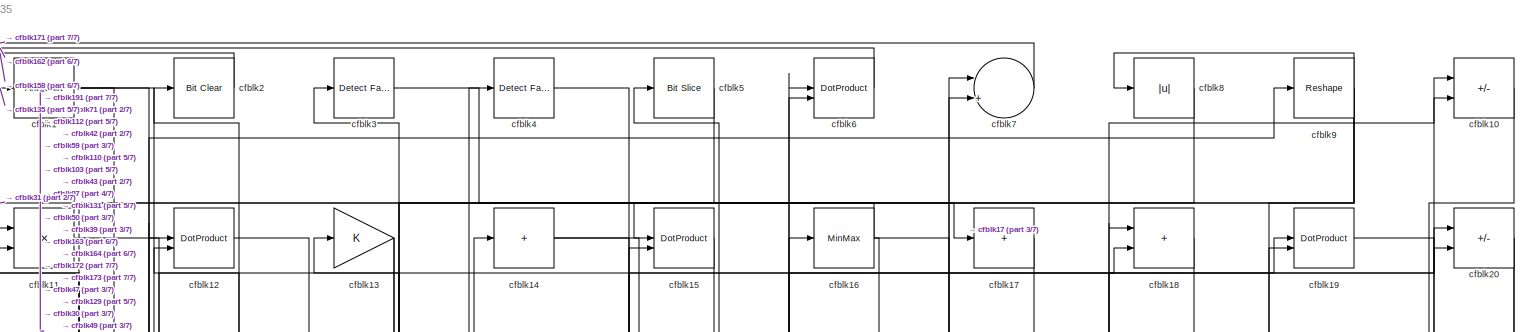
[diagram: root canvas - part 1/7, full width, top band]
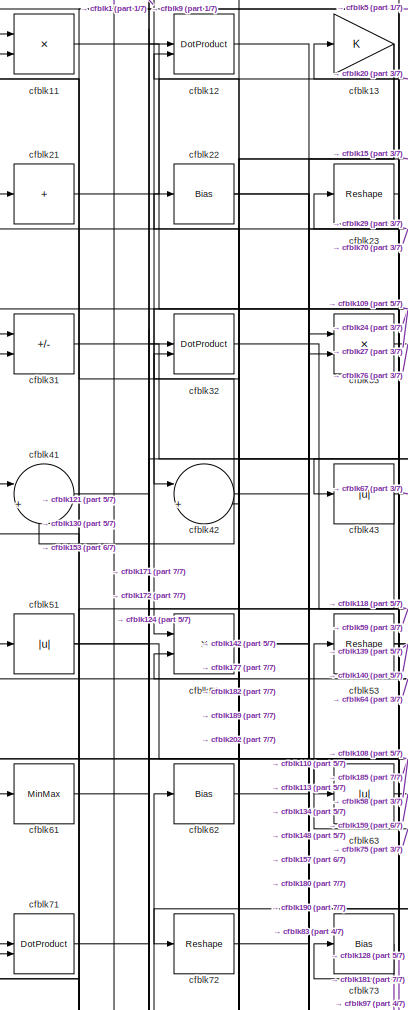
[diagram: root canvas - part 2/7, top left region]
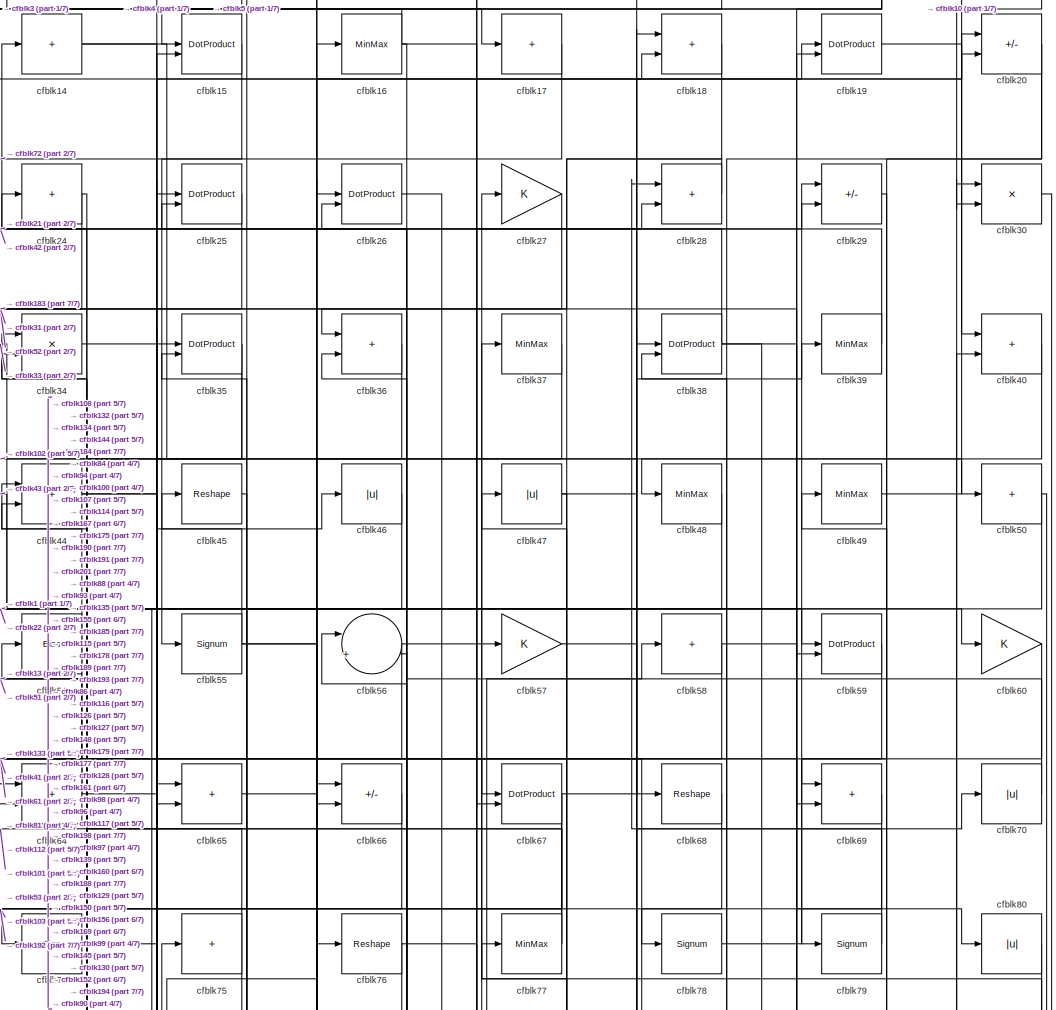
[diagram: root canvas - part 3/7, top center region]
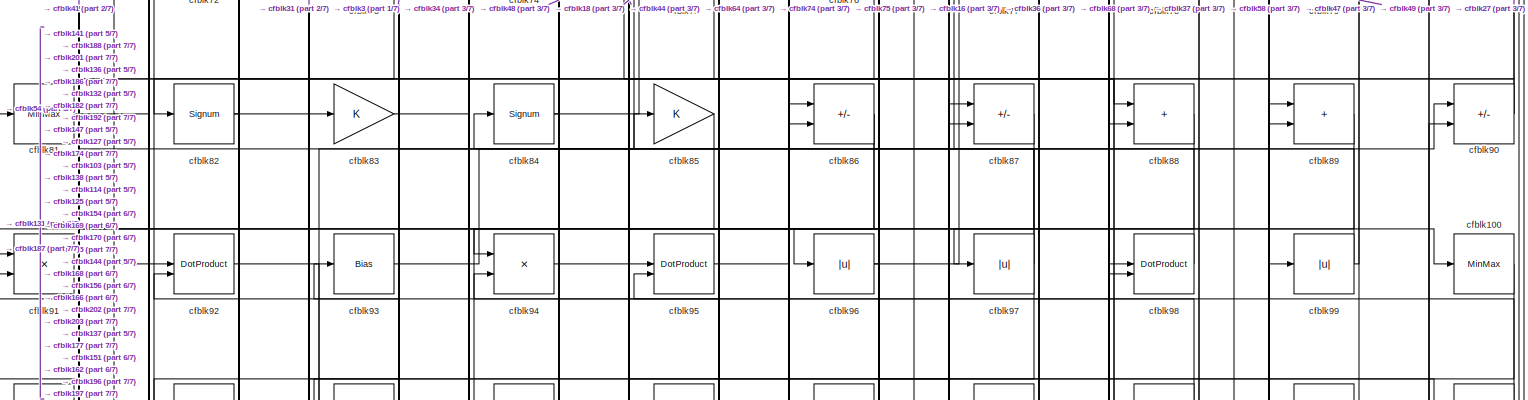
[diagram: root canvas - part 4/7, full width, middle band]
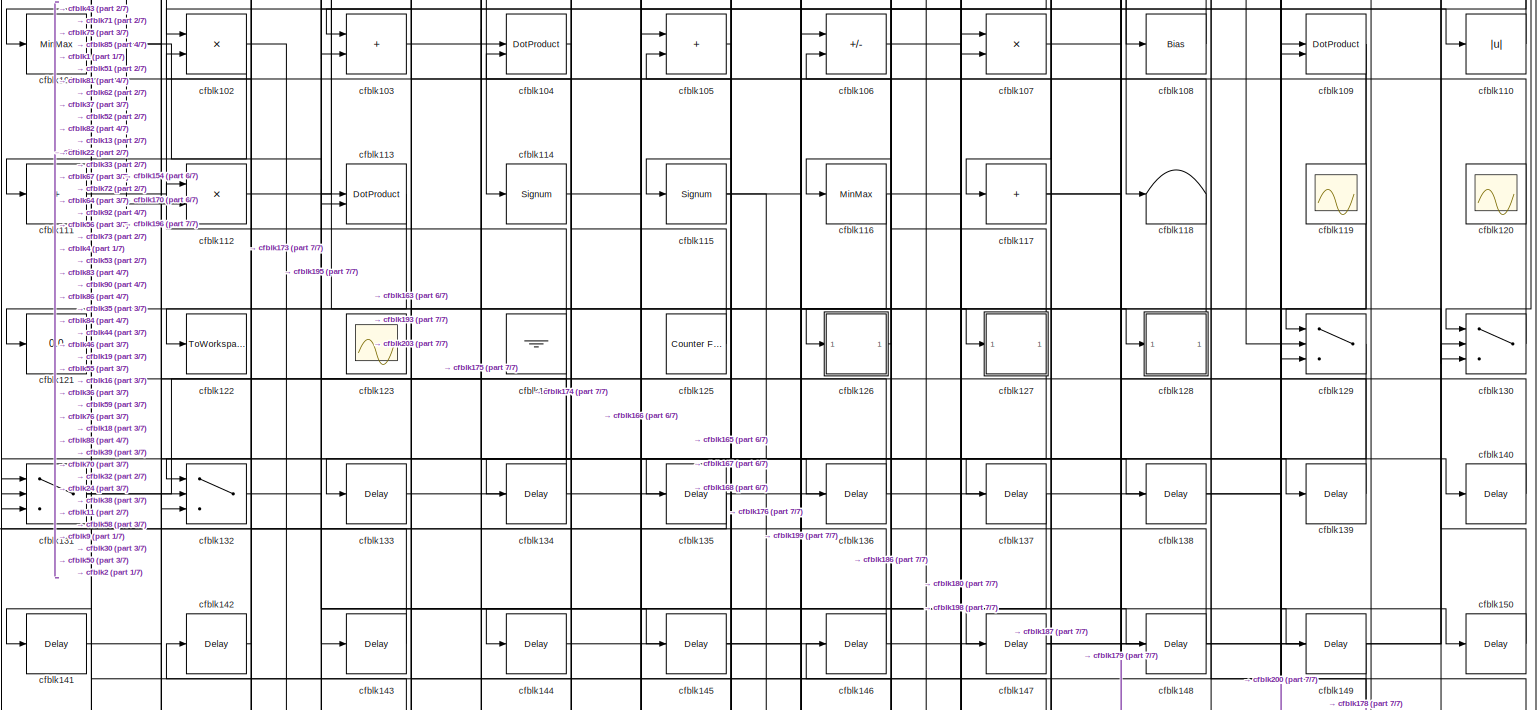
[diagram: root canvas - part 5/7, full width, middle band]
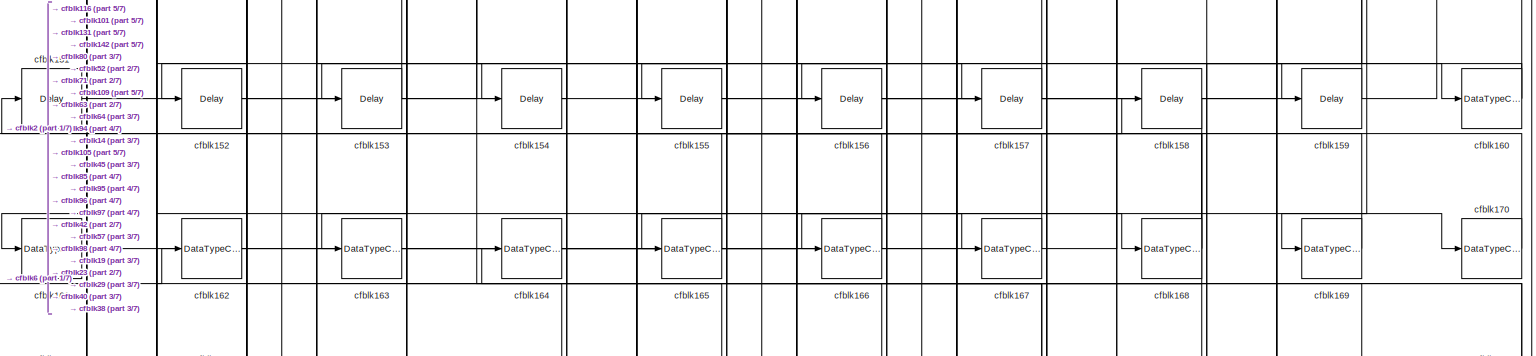
[diagram: root canvas - part 6/7, full width, bottom band]
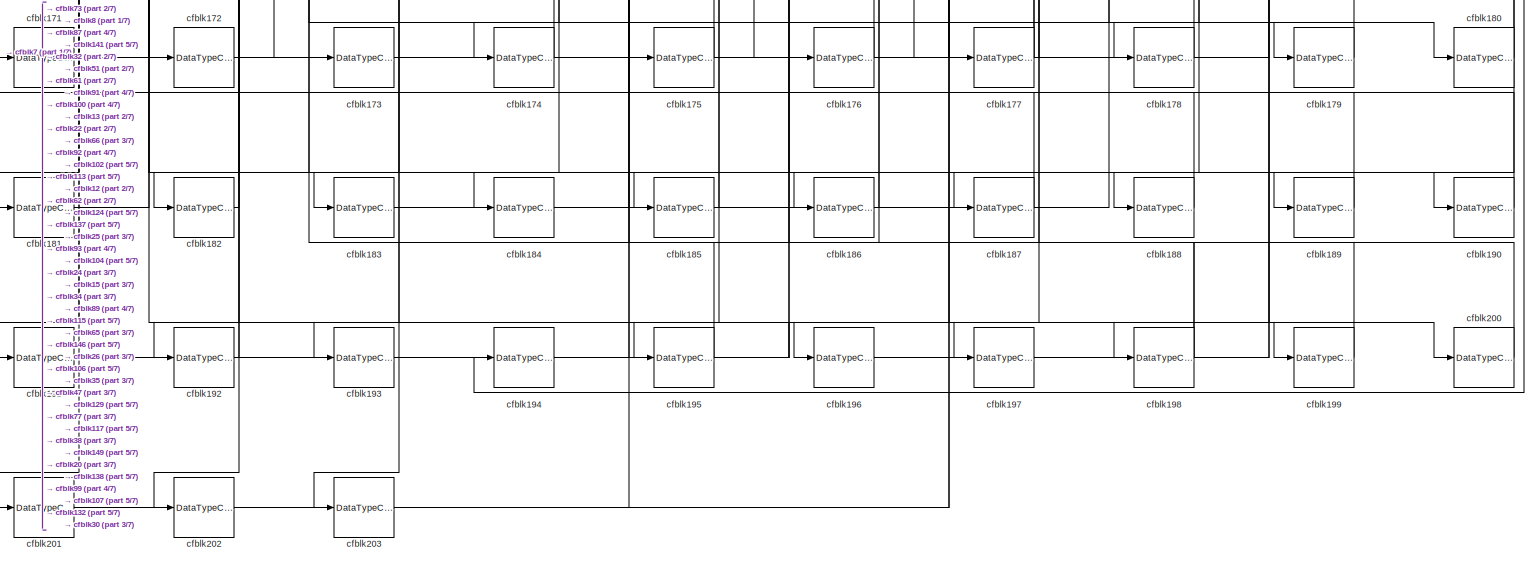
[diagram: root canvas - part 7/7, full width, bottom band]
MODEL slx_caec4e538235
KIND model
CONFIG AbsTol = auto
CONFIG EnableMultiTasking = off
CONFIG FixedStep = auto
CONFIG MaxStep = auto
CONFIG MinStep = auto
CONFIG RelTol = 1e-3
CONFIG SampleTimeConstraint = Unconstrained
CONFIG SolverName = VariableStepAuto
CONFIG StartTime = 0.0
CONFIG StopTime = 10.0
BLOCK [ArithShift] cfblk1
  BitShiftNumber = 8
  InputPortMap = u0
BLOCK [Sum] cfblk10
  IconShape = rectangular
  Inputs = +-
BLOCK [MinMax] cfblk100
BLOCK [MinMax] cfblk101
BLOCK [Product] cfblk102
  Inputs = */
  RndMeth = Zero
  SaturateOnIntegerOverflow = on
BLOCK [Sum] cfblk103
  IconShape = rectangular
BLOCK [DotProduct] cfblk104
  OutDataTypeStr = Inherit: Inherit via internal rule
BLOCK [Sum] cfblk105
  IconShape = rectangular
BLOCK [Sum] cfblk106
  IconShape = rectangular
  Inputs = +-
BLOCK [Product] cfblk107
  Inputs = */
  RndMeth = Zero
  SaturateOnIntegerOverflow = on
BLOCK [Bias] cfblk108
  Bias = 0.0
  SaturateOnIntegerOverflow = off
BLOCK [DotProduct] cfblk109
  OutDataTypeStr = Inherit: Inherit via internal rule
BLOCK [Product] cfblk11
  Inputs = */
  RndMeth = Zero
  SaturateOnIntegerOverflow = on
BLOCK [Abs] cfblk110
  SaturateOnIntegerOverflow = off
BLOCK [Sum] cfblk111
  IconShape = rectangular
  Inputs = +
BLOCK [Product] cfblk112
  Inputs = */
  RndMeth = Zero
  SaturateOnIntegerOverflow = on
BLOCK [DotProduct] cfblk113
  OutDataTypeStr = Inherit: Inherit via internal rule
BLOCK [Signum] cfblk114
BLOCK [Signum] cfblk115
BLOCK [MinMax] cfblk116
BLOCK [Sum] cfblk117
  IconShape = rectangular
  Inputs = +
BLOCK [Terminator] cfblk118
BLOCK [Scope] cfblk119
  Floating = on
  NumInputPorts = 1
  ScopeSpecificationString = Simulink.scopes.TimeScopeBlockCfg('CurrentConfiguration', extmgr.ConfigurationSet(extmgr.Configuration('Core','General UI',true,'FigureColor',[0.156862745098039 0.156862745098039 0.156862745098039]),extmgr.Configuration('Core','Source UI',true),extmgr.Configuration('Sources','WiredSimulink',true,'DataLoggingVariableName','ScopeData1','DataLoggingSaveFormat','StructureWithTime','DataLoggingLimitDat...<+2713ch>  <repeated x3 — deduplicated; at blocks: cfblk119, cfblk120, cfblk123>
BLOCK [DotProduct] cfblk12
  OutDataTypeStr = Inherit: Inherit via internal rule
BLOCK [Scope] cfblk120
  Floating = on
  NumInputPorts = 1
BLOCK [Display] cfblk121
  Decimation = 1
BLOCK [ToWorkspace] cfblk122
  MaxDataPoints = inf
  SampleTime = -1
  SaveFormat = Timeseries
  VariableName = simout
BLOCK [Scope] cfblk123
  Floating = on
  NumInputPorts = 1
BLOCK [Ground] cfblk124
BLOCK [Reference] cfblk125  REF=hdlsllib/Sources/Counter
Free-Running
  SourceBlock = hdlsllib/Sources/Counter\nFree-Running
  SourceType = Counter Free-Running
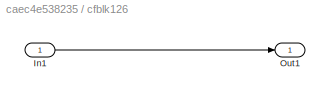
BLOCK [SubSystem] cfblk126
  LibrarySourceBlock = hdlsllib/Ports &\nSubsystems/Subsystem
BLOCK [Inport] cfblk126/In1
BLOCK [Outport] cfblk126/Out1
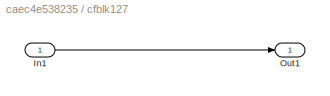
BLOCK [SubSystem] cfblk127
  LibrarySourceBlock = hdlsllib/Ports &\nSubsystems/Subsystem
BLOCK [Inport] cfblk127/In1
BLOCK [Outport] cfblk127/Out1
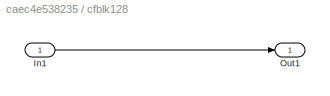
BLOCK [SubSystem] cfblk128
  LibrarySourceBlock = hdlsllib/Ports &\nSubsystems/Subsystem
BLOCK [Inport] cfblk128/In1
BLOCK [Outport] cfblk128/Out1
BLOCK [Switch] cfblk129
  InputSameDT = off
  SaturateOnIntegerOverflow = off
BLOCK [Gain] cfblk13
BLOCK [Switch] cfblk130
  InputSameDT = off
  SaturateOnIntegerOverflow = off
BLOCK [Switch] cfblk131
  InputSameDT = off
  SaturateOnIntegerOverflow = off
BLOCK [Switch] cfblk132
  InputSameDT = off
  SaturateOnIntegerOverflow = off
BLOCK [Delay] cfblk133
  InputPortMap = u0
  SampleTime = 1
BLOCK [Delay] cfblk134
  InputPortMap = u0
  SampleTime = 1
BLOCK [Delay] cfblk135
  InputPortMap = u0
  SampleTime = 1
BLOCK [Delay] cfblk136
  InputPortMap = u0
  SampleTime = 1
BLOCK [Delay] cfblk137
  InputPortMap = u0
  SampleTime = 1
BLOCK [Delay] cfblk138
  InputPortMap = u0
  SampleTime = 1
BLOCK [Delay] cfblk139
  InputPortMap = u0
  SampleTime = 1
BLOCK [Sum] cfblk14
  IconShape = rectangular
  Inputs = +
BLOCK [Delay] cfblk140
  InputPortMap = u0
  SampleTime = 1
BLOCK [Delay] cfblk141
  InputPortMap = u0
  SampleTime = 1
BLOCK [Delay] cfblk142
  InputPortMap = u0
  SampleTime = 1
BLOCK [Delay] cfblk143
  InputPortMap = u0
  SampleTime = 1
BLOCK [Delay] cfblk144
  InputPortMap = u0
  SampleTime = 1
BLOCK [Delay] cfblk145
  InputPortMap = u0
  SampleTime = 1
BLOCK [Delay] cfblk146
  InputPortMap = u0
  SampleTime = 1
BLOCK [Delay] cfblk147
  InputPortMap = u0
  SampleTime = 1
BLOCK [Delay] cfblk148
  InputPortMap = u0
  SampleTime = 1
BLOCK [Delay] cfblk149
  InputPortMap = u0
  SampleTime = 1
BLOCK [DotProduct] cfblk15
  OutDataTypeStr = Inherit: Inherit via internal rule
BLOCK [Delay] cfblk150
  InputPortMap = u0
  SampleTime = 1
BLOCK [Delay] cfblk151
  InputPortMap = u0
  SampleTime = 1
BLOCK [Delay] cfblk152
  InputPortMap = u0
  SampleTime = 1
BLOCK [Delay] cfblk153
  InputPortMap = u0
  SampleTime = 1
BLOCK [Delay] cfblk154
  InputPortMap = u0
  SampleTime = 1
BLOCK [Delay] cfblk155
  InputPortMap = u0
  SampleTime = 1
BLOCK [Delay] cfblk156
  InputPortMap = u0
  SampleTime = 1
BLOCK [Delay] cfblk157
  InputPortMap = u0
  SampleTime = 1
BLOCK [Delay] cfblk158
  InputPortMap = u0
  SampleTime = 1
BLOCK [Delay] cfblk159
  InputPortMap = u0
  SampleTime = 1
BLOCK [MinMax] cfblk16
BLOCK [DataTypeConversion] cfblk160
  RndMeth = Floor
  SaturateOnIntegerOverflow = off
BLOCK [DataTypeConversion] cfblk161
  OutDataTypeStr = uint8
  RndMeth = Floor
  SaturateOnIntegerOverflow = off
BLOCK [DataTypeConversion] cfblk162
  OutDataTypeStr = uint8
  RndMeth = Floor
  SaturateOnIntegerOverflow = off
BLOCK [DataTypeConversion] cfblk163
  OutDataTypeStr = uint8
  RndMeth = Floor
  SaturateOnIntegerOverflow = off
BLOCK [DataTypeConversion] cfblk164
  OutDataTypeStr = uint8
  RndMeth = Floor
  SaturateOnIntegerOverflow = off
BLOCK [DataTypeConversion] cfblk165
  OutDataTypeStr = uint8
  RndMeth = Floor
  SaturateOnIntegerOverflow = off
BLOCK [DataTypeConversion] cfblk166
  OutDataTypeStr = uint8
  RndMeth = Floor
  SaturateOnIntegerOverflow = off
BLOCK [DataTypeConversion] cfblk167
  OutDataTypeStr = uint8
  RndMeth = Floor
  SaturateOnIntegerOverflow = off
BLOCK [DataTypeConversion] cfblk168
  RndMeth = Floor
  SaturateOnIntegerOverflow = off
BLOCK [DataTypeConversion] cfblk169
  OutDataTypeStr = uint8
  RndMeth = Floor
  SaturateOnIntegerOverflow = off
BLOCK [Sum] cfblk17
  IconShape = rectangular
  Inputs = +
BLOCK [DataTypeConversion] cfblk170
  OutDataTypeStr = uint8
  RndMeth = Floor
  SaturateOnIntegerOverflow = off
BLOCK [DataTypeConversion] cfblk171
  OutDataTypeStr = uint8
  RndMeth = Floor
  SaturateOnIntegerOverflow = off
BLOCK [DataTypeConversion] cfblk172
  OutDataTypeStr = uint8
  RndMeth = Floor
  SaturateOnIntegerOverflow = off
BLOCK [DataTypeConversion] cfblk173
  OutDataTypeStr = uint8
  RndMeth = Floor
  SaturateOnIntegerOverflow = off
BLOCK [DataTypeConversion] cfblk174
  OutDataTypeStr = uint8
  RndMeth = Floor
  SaturateOnIntegerOverflow = off
BLOCK [DataTypeConversion] cfblk175
  OutDataTypeStr = uint8
  RndMeth = Floor
  SaturateOnIntegerOverflow = off
BLOCK [DataTypeConversion] cfblk176
  OutDataTypeStr = uint8
  RndMeth = Floor
  SaturateOnIntegerOverflow = off
BLOCK [DataTypeConversion] cfblk177
  RndMeth = Floor
  SaturateOnIntegerOverflow = off
BLOCK [DataTypeConversion] cfblk178
  OutDataTypeStr = uint8
  RndMeth = Floor
  SaturateOnIntegerOverflow = off
BLOCK [DataTypeConversion] cfblk179
  OutDataTypeStr = uint8
  RndMeth = Floor
  SaturateOnIntegerOverflow = off
BLOCK [Sum] cfblk18
  IconShape = rectangular
BLOCK [DataTypeConversion] cfblk180
  RndMeth = Floor
  SaturateOnIntegerOverflow = off
BLOCK [DataTypeConversion] cfblk181
  OutDataTypeStr = uint8
  RndMeth = Floor
  SaturateOnIntegerOverflow = off
BLOCK [DataTypeConversion] cfblk182
  OutDataTypeStr = uint8
  RndMeth = Floor
  SaturateOnIntegerOverflow = off
BLOCK [DataTypeConversion] cfblk183
  OutDataTypeStr = uint8
  RndMeth = Floor
  SaturateOnIntegerOverflow = off
BLOCK [DataTypeConversion] cfblk184
  OutDataTypeStr = uint8
  RndMeth = Floor
  SaturateOnIntegerOverflow = off
BLOCK [DataTypeConversion] cfblk185
  OutDataTypeStr = uint8
  RndMeth = Floor
  SaturateOnIntegerOverflow = off
BLOCK [DataTypeConversion] cfblk186
  OutDataTypeStr = uint8
  RndMeth = Floor
  SaturateOnIntegerOverflow = off
BLOCK [DataTypeConversion] cfblk187
  OutDataTypeStr = uint8
  RndMeth = Floor
  SaturateOnIntegerOverflow = off
BLOCK [DataTypeConversion] cfblk188
  OutDataTypeStr = uint8
  RndMeth = Floor
  SaturateOnIntegerOverflow = off
BLOCK [DataTypeConversion] cfblk189
  OutDataTypeStr = uint8
  RndMeth = Floor
  SaturateOnIntegerOverflow = off
BLOCK [DotProduct] cfblk19
  OutDataTypeStr = Inherit: Inherit via internal rule
BLOCK [DataTypeConversion] cfblk190
  OutDataTypeStr = uint8
  RndMeth = Floor
  SaturateOnIntegerOverflow = off
BLOCK [DataTypeConversion] cfblk191
  OutDataTypeStr = uint8
  RndMeth = Floor
  SaturateOnIntegerOverflow = off
BLOCK [DataTypeConversion] cfblk192
  OutDataTypeStr = uint8
  RndMeth = Floor
  SaturateOnIntegerOverflow = off
BLOCK [DataTypeConversion] cfblk193
  OutDataTypeStr = uint8
  RndMeth = Floor
  SaturateOnIntegerOverflow = off
BLOCK [DataTypeConversion] cfblk194
  OutDataTypeStr = uint8
  RndMeth = Floor
  SaturateOnIntegerOverflow = off
BLOCK [DataTypeConversion] cfblk195
  RndMeth = Floor
  SaturateOnIntegerOverflow = off
BLOCK [DataTypeConversion] cfblk196
  OutDataTypeStr = uint8
  RndMeth = Floor
  SaturateOnIntegerOverflow = off
BLOCK [DataTypeConversion] cfblk197
  OutDataTypeStr = uint8
  RndMeth = Floor
  SaturateOnIntegerOverflow = off
BLOCK [DataTypeConversion] cfblk198
  RndMeth = Floor
  SaturateOnIntegerOverflow = off
BLOCK [DataTypeConversion] cfblk199
  OutDataTypeStr = uint8
  RndMeth = Floor
  SaturateOnIntegerOverflow = off
BLOCK [Reference] cfblk2  REF=simulink/Logic and Bit
Operations/Bit Clear
  LibrarySourceBlock = hdlsllib/Logic and Bit\nOperations/Bit Clear
  SourceBlock = simulink/Logic and Bit\nOperations/Bit Clear
  SourceType = Bit Clear
BLOCK [Sum] cfblk20
  IconShape = rectangular
  Inputs = +-
BLOCK [DataTypeConversion] cfblk200
  OutDataTypeStr = uint8
  RndMeth = Floor
  SaturateOnIntegerOverflow = off
BLOCK [DataTypeConversion] cfblk201
  OutDataTypeStr = uint8
  RndMeth = Floor
  SaturateOnIntegerOverflow = off
BLOCK [DataTypeConversion] cfblk202
  OutDataTypeStr = uint8
  RndMeth = Floor
  SaturateOnIntegerOverflow = off
BLOCK [DataTypeConversion] cfblk203
  OutDataTypeStr = uint8
  RndMeth = Floor
  SaturateOnIntegerOverflow = off
BLOCK [Sum] cfblk21
  IconShape = rectangular
  Inputs = +
BLOCK [Bias] cfblk22
  Bias = 0.0
  SaturateOnIntegerOverflow = off
BLOCK [Reshape] cfblk23
BLOCK [Sum] cfblk24
  IconShape = rectangular
  Inputs = +
BLOCK [DotProduct] cfblk25
  OutDataTypeStr = Inherit: Inherit via internal rule
BLOCK [DotProduct] cfblk26
  OutDataTypeStr = Inherit: Inherit via internal rule
BLOCK [Gain] cfblk27
BLOCK [Sum] cfblk28
  IconShape = rectangular
BLOCK [Sum] cfblk29
  IconShape = rectangular
  Inputs = +-
BLOCK [Reference] cfblk3  REF=hdlsllib/Logic and Bit
Operations/Detect Fall
Nonpositive
  SourceBlock = hdlsllib/Logic and Bit\nOperations/Detect Fall\nNonpositive
  SourceType = Detect Fall Nonpositive
BLOCK [Product] cfblk30
  Inputs = */
  RndMeth = Zero
  SaturateOnIntegerOverflow = on
BLOCK [Sum] cfblk31
  IconShape = rectangular
  Inputs = +-
BLOCK [DotProduct] cfblk32
  OutDataTypeStr = Inherit: Inherit via internal rule
BLOCK [Product] cfblk33
  Inputs = */
  RndMeth = Zero
  SaturateOnIntegerOverflow = on
BLOCK [Product] cfblk34
  Inputs = */
  RndMeth = Zero
  SaturateOnIntegerOverflow = on
BLOCK [DotProduct] cfblk35
  OutDataTypeStr = Inherit: Inherit via internal rule
BLOCK [Sum] cfblk36
  IconShape = rectangular
BLOCK [MinMax] cfblk37
BLOCK [DotProduct] cfblk38
  OutDataTypeStr = Inherit: Inherit via internal rule
BLOCK [MinMax] cfblk39
BLOCK [Reference] cfblk4  REF=hdlsllib/Logic and Bit
Operations/Detect Fall
Negative
  SourceBlock = hdlsllib/Logic and Bit\nOperations/Detect Fall\nNegative
  SourceType = Detect Fall Negative
BLOCK [Sum] cfblk40
  IconShape = rectangular
BLOCK [Sum] cfblk41
  Inputs = |++
BLOCK [Sum] cfblk42
  Inputs = |++
BLOCK [Abs] cfblk43
  SaturateOnIntegerOverflow = off
BLOCK [Sum] cfblk44
  IconShape = rectangular
BLOCK [Reshape] cfblk45
BLOCK [Abs] cfblk46
  SaturateOnIntegerOverflow = off
BLOCK [Abs] cfblk47
  SaturateOnIntegerOverflow = off
BLOCK [MinMax] cfblk48
BLOCK [MinMax] cfblk49
BLOCK [Reference] cfblk5  REF=hdlsllib/Logic and Bit
Operations/Bit Slice
  SourceBlock = hdlsllib/Logic and Bit\nOperations/Bit Slice
  SourceType = Bit Slice
BLOCK [Sum] cfblk50
  IconShape = rectangular
  Inputs = +
BLOCK [Abs] cfblk51
  SaturateOnIntegerOverflow = off
BLOCK [Product] cfblk52
  Inputs = */
  RndMeth = Zero
  SaturateOnIntegerOverflow = on
BLOCK [Reshape] cfblk53
BLOCK [Bias] cfblk54
  Bias = 0.0
  SaturateOnIntegerOverflow = off
BLOCK [Signum] cfblk55
BLOCK [Sum] cfblk56
  Inputs = |++
BLOCK [Gain] cfblk57
BLOCK [Sum] cfblk58
  IconShape = rectangular
  Inputs = +
BLOCK [DotProduct] cfblk59
  OutDataTypeStr = Inherit: Inherit via internal rule
BLOCK [DotProduct] cfblk6
  OutDataTypeStr = Inherit: Inherit via internal rule
BLOCK [Gain] cfblk60
BLOCK [MinMax] cfblk61
BLOCK [Bias] cfblk62
  Bias = 0.0
  SaturateOnIntegerOverflow = off
BLOCK [Abs] cfblk63
  SaturateOnIntegerOverflow = off
BLOCK [Sum] cfblk64
  IconShape = rectangular
BLOCK [Sum] cfblk65
  IconShape = rectangular
BLOCK [Sum] cfblk66
  IconShape = rectangular
  Inputs = +-
BLOCK [DotProduct] cfblk67
  OutDataTypeStr = Inherit: Inherit via internal rule
BLOCK [Reshape] cfblk68
BLOCK [Sum] cfblk69
  IconShape = rectangular
BLOCK [Sum] cfblk7
  Inputs = |++
BLOCK [Abs] cfblk70
  SaturateOnIntegerOverflow = off
BLOCK [DotProduct] cfblk71
  OutDataTypeStr = Inherit: Inherit via internal rule
BLOCK [Reshape] cfblk72
BLOCK [Bias] cfblk73
  Bias = 0.0
  SaturateOnIntegerOverflow = off
BLOCK [Bias] cfblk74
  Bias = 0.0
  SaturateOnIntegerOverflow = off
BLOCK [Sum] cfblk75
  IconShape = rectangular
  Inputs = +
BLOCK [Reshape] cfblk76
BLOCK [MinMax] cfblk77
BLOCK [Signum] cfblk78
BLOCK [Signum] cfblk79
BLOCK [Abs] cfblk8
  SaturateOnIntegerOverflow = off
BLOCK [Abs] cfblk80
  SaturateOnIntegerOverflow = off
BLOCK [MinMax] cfblk81
BLOCK [Signum] cfblk82
BLOCK [Gain] cfblk83
BLOCK [Signum] cfblk84
BLOCK [Gain] cfblk85
BLOCK [Sum] cfblk86
  IconShape = rectangular
  Inputs = +-
BLOCK [Sum] cfblk87
  IconShape = rectangular
  Inputs = +-
BLOCK [Sum] cfblk88
  IconShape = rectangular
BLOCK [Sum] cfblk89
  IconShape = rectangular
BLOCK [Reshape] cfblk9
BLOCK [Sum] cfblk90
  IconShape = rectangular
  Inputs = +-
BLOCK [Product] cfblk91
  Inputs = */
  RndMeth = Zero
  SaturateOnIntegerOverflow = on
BLOCK [DotProduct] cfblk92
  OutDataTypeStr = Inherit: Inherit via internal rule
BLOCK [Bias] cfblk93
  Bias = 0.0
  SaturateOnIntegerOverflow = off
BLOCK [Product] cfblk94
  Inputs = */
  RndMeth = Zero
  SaturateOnIntegerOverflow = on
BLOCK [DotProduct] cfblk95
  OutDataTypeStr = Inherit: Inherit via internal rule
BLOCK [Abs] cfblk96
  SaturateOnIntegerOverflow = off
BLOCK [Abs] cfblk97
  SaturateOnIntegerOverflow = off
BLOCK [DotProduct] cfblk98
  OutDataTypeStr = Inherit: Inherit via internal rule
BLOCK [Abs] cfblk99
  SaturateOnIntegerOverflow = off
LINE cfblk100:1 -> cfblk182:1
NET cfblk101:1 -> cfblk143:1, cfblk170:1
NET cfblk102:1 -> cfblk111:1, cfblk173:1
LINE cfblk103:1 -> cfblk90:1
LINE cfblk104:1 -> cfblk174:1
LINE cfblk105:1 -> cfblk165:1
LINE cfblk106:1 -> cfblk198:1
LINE cfblk107:1 -> cfblk39:1
LINE cfblk108:1 -> cfblk24:1
NET cfblk109:1 -> cfblk129:1, cfblk163:1
LINE cfblk10:1 -> cfblk30:2
LINE cfblk110:1 -> cfblk2:1
LINE cfblk111:1 -> cfblk112:1
LINE cfblk112:1 -> cfblk64:1
LINE cfblk113:1 -> cfblk122:1
LINE cfblk114:1 -> cfblk46:1
NET cfblk115:1 -> cfblk176:1, cfblk19:1
NET cfblk116:1 -> cfblk149:1, cfblk161:1
NET cfblk117:1 -> cfblk179:1, cfblk70:1
LINE cfblk11:1 -> cfblk109:1
NET cfblk124:1 -> cfblk203:1, cfblk62:1
LINE cfblk125:1 -> cfblk84:1
LINE cfblk126/In1:1 -> cfblk126/Out1:1
LINE cfblk126:1 -> cfblk56:2
LINE cfblk127/In1:1 -> cfblk127/Out1:1
NET cfblk127:1 -> cfblk131:2, cfblk56:1
LINE cfblk128/In1:1 -> cfblk128/Out1:1
LINE cfblk128:1 -> cfblk73:1
LINE cfblk129:1 -> cfblk187:1
LINE cfblk12:1 -> cfblk180:1
LINE cfblk130:1 -> cfblk71:1
NET cfblk131:1 -> cfblk154:1, cfblk4:1
LINE cfblk132:1 -> cfblk145:1
LINE cfblk133:1 -> cfblk109:2
LINE cfblk134:1 -> cfblk33:1
LINE cfblk135:1 -> cfblk1:1
LINE cfblk136:1 -> cfblk92:1
LINE cfblk137:1 -> cfblk193:1
LINE cfblk138:1 -> cfblk200:1
LINE cfblk139:1 -> cfblk18:1
NET cfblk13:1 -> cfblk113:2, cfblk202:1
LINE cfblk140:1 -> cfblk11:2
LINE cfblk141:1 -> cfblk196:1
LINE cfblk142:1 -> cfblk52:2
LINE cfblk143:1 -> cfblk102:2
LINE cfblk144:1 -> cfblk86:1
LINE cfblk145:1 -> cfblk30:1
LINE cfblk146:1 -> cfblk131:1
LINE cfblk147:1 -> cfblk90:2
LINE cfblk148:1 -> cfblk36:2
LINE cfblk149:1 -> cfblk178:1
NET cfblk14:1 -> cfblk167:1, cfblk68:1
LINE cfblk150:1 -> cfblk130:2
LINE cfblk151:1 -> cfblk98:1
LINE cfblk152:1 -> cfblk64:2
LINE cfblk153:1 -> cfblk71:2
LINE cfblk154:1 -> cfblk94:2
LINE cfblk155:1 -> cfblk40:2
LINE cfblk156:1 -> cfblk19:2
LINE cfblk157:1 -> cfblk42:2
LINE cfblk158:1 -> cfblk164:1
LINE cfblk159:1 -> cfblk23:1
LINE cfblk15:1 -> cfblk72:1
NET cfblk160:1 -> cfblk153:1, cfblk38:2
LINE cfblk161:1 -> cfblk57:1
LINE cfblk162:1 -> cfblk98:2
LINE cfblk163:1 -> cfblk6:1
LINE cfblk164:1 -> cfblk6:2
LINE cfblk165:1 -> cfblk151:1
LINE cfblk166:1 -> cfblk105:1
LINE cfblk167:1 -> cfblk105:2
NET cfblk168:1 -> cfblk142:1, cfblk85:1
LINE cfblk169:1 -> cfblk95:1
NET cfblk16:1 -> cfblk126:1, cfblk15:1, cfblk60:1
LINE cfblk170:1 -> cfblk95:2
LINE cfblk171:1 -> cfblk32:1
LINE cfblk172:1 -> cfblk7:1
LINE cfblk173:1 -> cfblk7:2
LINE cfblk174:1 -> cfblk93:1
LINE cfblk175:1 -> cfblk104:1
LINE cfblk176:1 -> cfblk104:2
NET cfblk177:1 -> cfblk32:2, cfblk35:2, cfblk47:1, cfblk99:1
LINE cfblk178:1 -> cfblk26:1
LINE cfblk179:1 -> cfblk26:2
LINE cfblk17:1 -> cfblk55:1
NET cfblk180:1 -> cfblk107:1, cfblk132:2, cfblk197:1
LINE cfblk181:1 -> cfblk12:1
LINE cfblk182:1 -> cfblk12:2
LINE cfblk183:1 -> cfblk38:1
LINE cfblk184:1 -> cfblk25:1
LINE cfblk185:1 -> cfblk25:2
LINE cfblk186:1 -> cfblk146:1
LINE cfblk187:1 -> cfblk91:1
LINE cfblk188:1 -> cfblk91:2
LINE cfblk189:1 -> cfblk22:1
LINE cfblk18:1 -> cfblk117:1
LINE cfblk190:1 -> cfblk65:1
LINE cfblk191:1 -> cfblk65:2
LINE cfblk192:1 -> cfblk92:2
LINE cfblk193:1 -> cfblk66:1
LINE cfblk194:1 -> cfblk66:2
NET cfblk195:1 -> cfblk113:1, cfblk199:1
LINE cfblk196:1 -> cfblk89:1
LINE cfblk197:1 -> cfblk89:2
NET cfblk198:1 -> cfblk35:1, cfblk77:1
LINE cfblk199:1 -> cfblk106:1
LINE cfblk19:1 -> cfblk40:1
NET cfblk1:1 -> cfblk112:2, cfblk42:1, cfblk59:1
LINE cfblk200:1 -> cfblk106:2
LINE cfblk201:1 -> cfblk15:2
LINE cfblk202:1 -> cfblk87:1
LINE cfblk203:1 -> cfblk87:2
NET cfblk20:1 -> cfblk188:1, cfblk69:1
LINE cfblk21:1 -> cfblk20:1
NET cfblk22:1 -> cfblk148:1, cfblk59:2
LINE cfblk23:1 -> cfblk63:1
NET cfblk24:1 -> cfblk184:1, cfblk52:1
LINE cfblk25:1 -> cfblk183:1
LINE cfblk26:1 -> cfblk177:1
LINE cfblk27:1 -> cfblk31:2
LINE cfblk28:1 -> cfblk36:1
LINE cfblk29:1 -> cfblk169:1
LINE cfblk2:1 -> cfblk158:1
LINE cfblk30:1 -> cfblk194:1
LINE cfblk31:1 -> cfblk83:1
LINE cfblk32:1 -> cfblk118:1
LINE cfblk33:1 -> cfblk76:1
LINE cfblk34:1 -> cfblk175:1
NET cfblk35:1 -> cfblk132:3, cfblk144:1
LINE cfblk36:1 -> cfblk86:2
LINE cfblk37:1 -> cfblk102:1
NET cfblk38:1 -> cfblk129:2, cfblk14:1, cfblk80:1
LINE cfblk39:1 -> cfblk5:1
LINE cfblk3:1 -> cfblk17:1
LINE cfblk40:1 -> cfblk48:1
LINE cfblk41:1 -> cfblk67:1
NET cfblk42:1 -> cfblk11:1, cfblk29:2, cfblk41:2
NET cfblk43:1 -> cfblk121:1, cfblk67:2
NET cfblk44:1 -> cfblk107:2, cfblk88:1
LINE cfblk45:1 -> cfblk155:1
LINE cfblk46:1 -> cfblk134:1
NET cfblk47:1 -> cfblk10:2, cfblk97:1
LINE cfblk48:1 -> cfblk94:1
LINE cfblk49:1 -> cfblk10:1
LINE cfblk4:1 -> cfblk50:1
NET cfblk50:1 -> cfblk130:1, cfblk135:1
NET cfblk51:1 -> cfblk108:1, cfblk185:1
NET cfblk52:1 -> cfblk157:1, cfblk33:2
NET cfblk53:1 -> cfblk139:1, cfblk140:1
NET cfblk54:1 -> cfblk44:2, cfblk81:1
NET cfblk55:1 -> cfblk130:3, cfblk45:1, cfblk69:2
NET cfblk56:1 -> cfblk133:1, cfblk28:2
LINE cfblk57:1 -> cfblk160:1
NET cfblk58:1 -> cfblk150:1, cfblk61:1
LINE cfblk59:1 -> cfblk116:1
LINE cfblk5:1 -> cfblk31:1
LINE cfblk60:1 -> cfblk79:1
LINE cfblk61:1 -> cfblk172:1
LINE cfblk62:1 -> cfblk190:1
LINE cfblk63:1 -> cfblk159:1
NET cfblk64:1 -> cfblk13:1, cfblk51:1, cfblk88:2
LINE cfblk65:1 -> cfblk189:1
LINE cfblk66:1 -> cfblk192:1
NET cfblk67:1 -> cfblk103:2, cfblk20:2, cfblk74:1
LINE cfblk68:1 -> cfblk96:1
LINE cfblk69:1 -> cfblk78:1
LINE cfblk6:1 -> cfblk162:1
LINE cfblk70:1 -> cfblk21:1
LINE cfblk71:1 -> cfblk9:1
LINE cfblk72:1 -> cfblk110:1
LINE cfblk73:1 -> cfblk181:1
LINE cfblk74:1 -> cfblk100:1
NET cfblk75:1 -> cfblk101:1, cfblk53:1
NET cfblk76:1 -> cfblk115:1, cfblk128:1
NET cfblk77:1 -> cfblk34:1, cfblk54:1
LINE cfblk78:1 -> cfblk29:1
LINE cfblk79:1 -> cfblk28:1
LINE cfblk7:1 -> cfblk171:1
LINE cfblk80:1 -> cfblk152:1
LINE cfblk81:1 -> cfblk136:1
NET cfblk82:1 -> cfblk132:1, cfblk147:1
LINE cfblk83:1 -> cfblk138:1
NET cfblk84:1 -> cfblk16:1, cfblk34:2
LINE cfblk85:1 -> cfblk141:1
NET cfblk86:1 -> cfblk114:1, cfblk131:3
LINE cfblk87:1 -> cfblk201:1
LINE cfblk88:1 -> cfblk137:1
LINE cfblk89:1 -> cfblk195:1
LINE cfblk8:1 -> cfblk191:1
NET cfblk90:1 -> cfblk27:1, cfblk82:1
LINE cfblk91:1 -> cfblk186:1
LINE cfblk92:1 -> cfblk127:1
LINE cfblk93:1 -> cfblk75:1
LINE cfblk94:1 -> cfblk18:2
LINE cfblk95:1 -> cfblk168:1
NET cfblk96:1 -> cfblk166:1, cfblk58:1
NET cfblk97:1 -> cfblk156:1, cfblk3:1, cfblk41:1
LINE cfblk98:1 -> cfblk37:1
NET cfblk99:1 -> cfblk44:1, cfblk49:1
NET cfblk9:1 -> cfblk103:1, cfblk129:3, cfblk43:1, cfblk8:1
note: NET lines group one-source signal fan-out (src -> all destinations, sorted); 1:1 wires keep LINE
